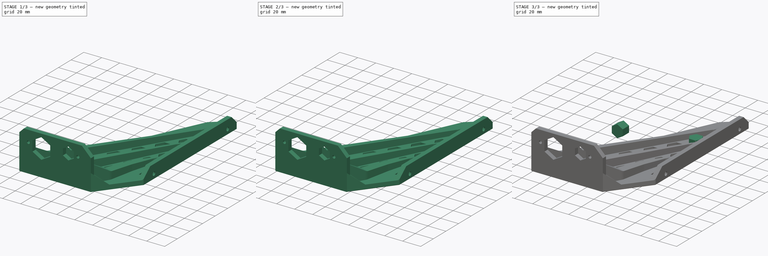
[diagram: build sequence overview — one tinted view per stage of 3, left to right]
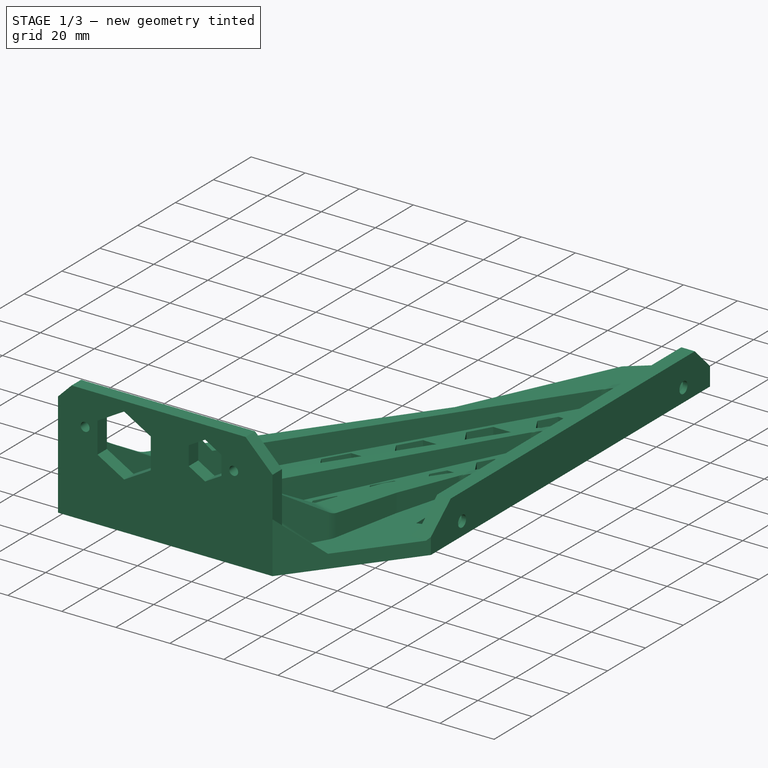
[diagram: stage 1 of 3 — iso view after this stage's code; geometry added in this stage tinted green]
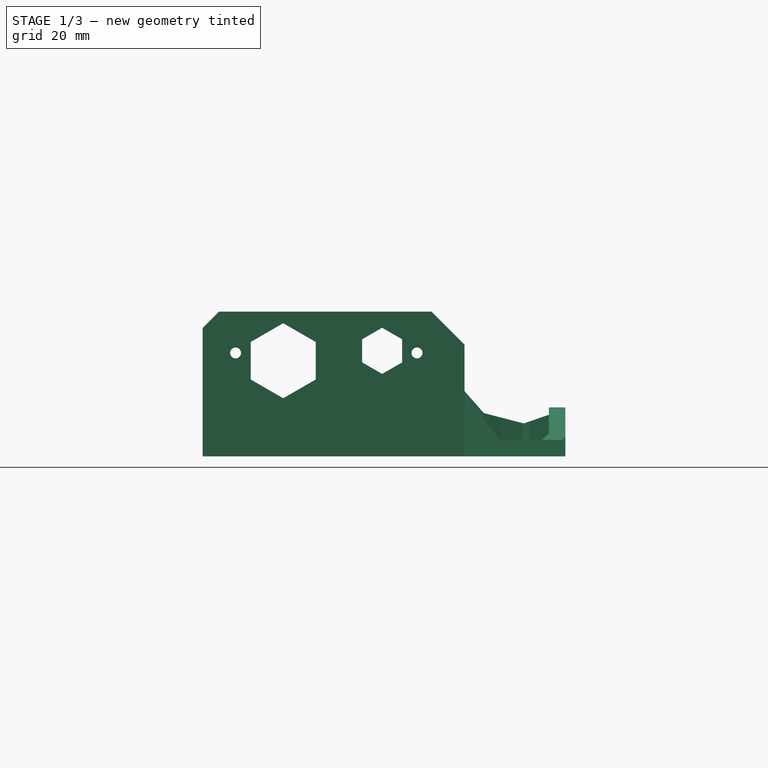
[diagram: stage 1 of 3 — front view after this stage's code; geometry added in this stage tinted green]
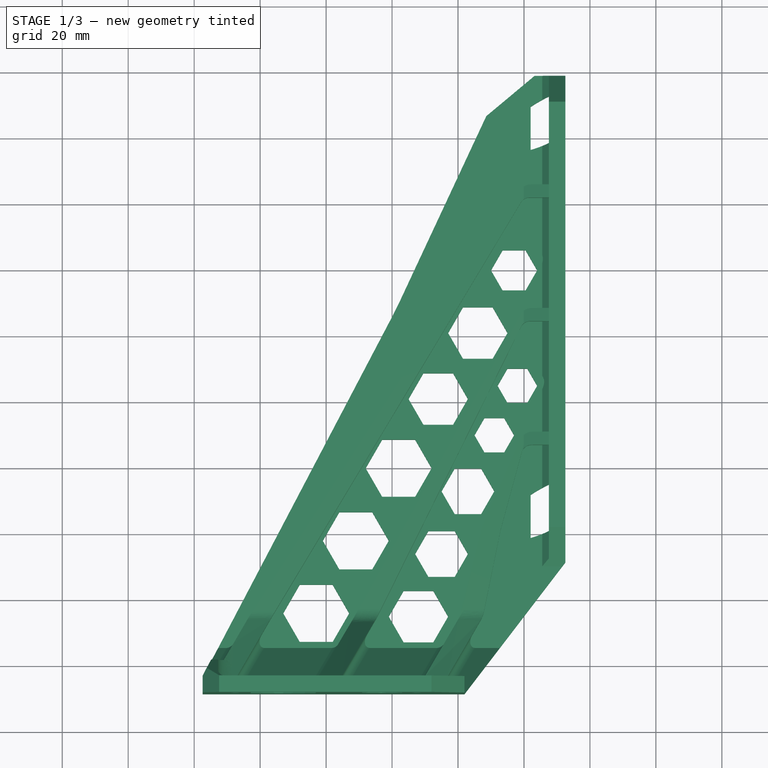
[diagram: stage 1 of 3 — top view after this stage's code; geometry added in this stage tinted green]
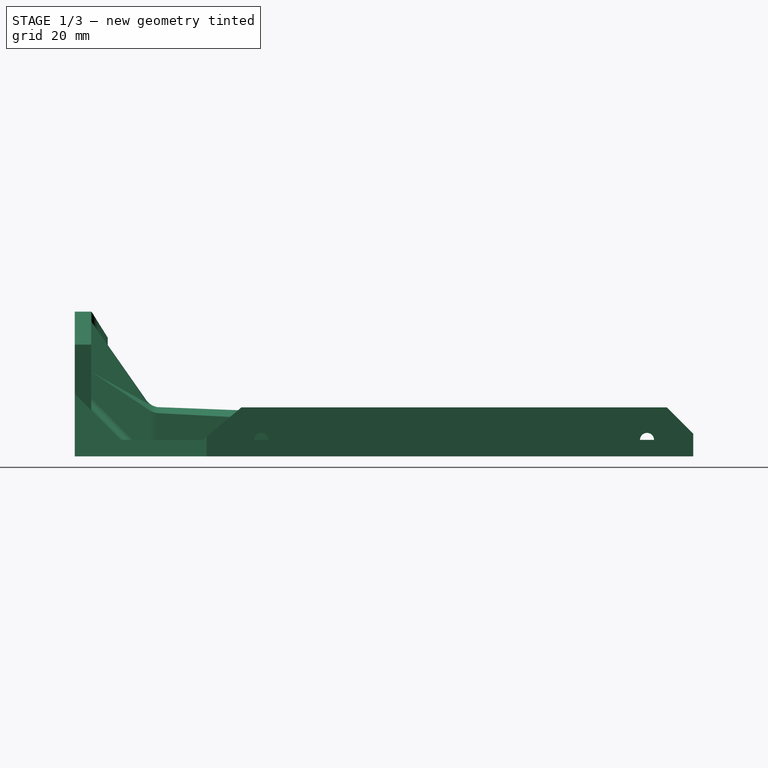
[diagram: stage 1 of 3 — right view after this stage's code; geometry added in this stage tinted green]
FCSTD DOCUMENT  (FreeCAD 0.18R14555 (Git shallow))
Label: prusa-psu-bracket
License: All rights reserved
LicenseURL: http://en.wikipedia.org/wiki/All_rights_reserved
objects: Part::Feature×14, Part::Chamfer×3, Sketcher::SketchObject×2, PartDesign::Pad×2, PartDesign::Body×2, Part::MultiFuse×1, Part::Cut×1
note: 27 computed .brp shape members not serialized (recipe doc carries the construction recipe); baked Part::Feature solids carry a one-line shape summary decoded from their .brp

FEATURE [PartDesign::Body] Body013
  Group = -> [Sketch001,Pad001]
  Origin = -> Origin001
  Tip = -> Pad001
FEATURE [Part::Feature] Body013002  label="Body015"
  Placement = pos=(0,-60,0) rot=(0,0,1;0rad)
  shape: bbox 12.12 x 10 x 14 mm, 8 faces (baked)
FEATURE [Part::MultiFuse] Fusion
  Shapes = -> [Body013002,Body013001,Body012,Body009,Body008,Body011,Body010,Body002,Body001,Body004,Body003,Body005,Body007]
FEATURE [Part::Cut] Cut
  Base = -> Part__Feature
  Tool = -> Fusion
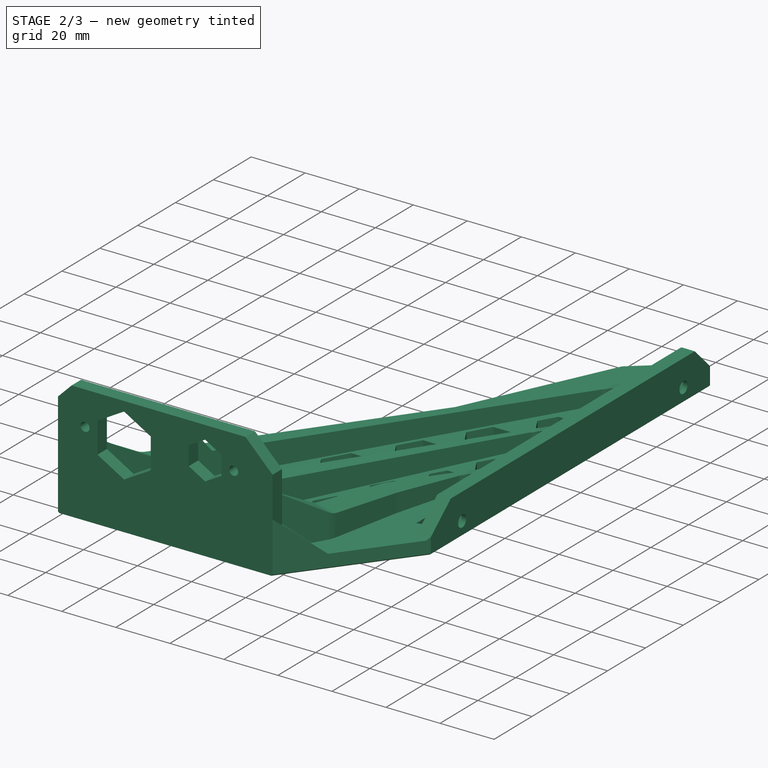
[diagram: stage 2 of 3 — iso view after this stage's code; geometry added in this stage tinted green]
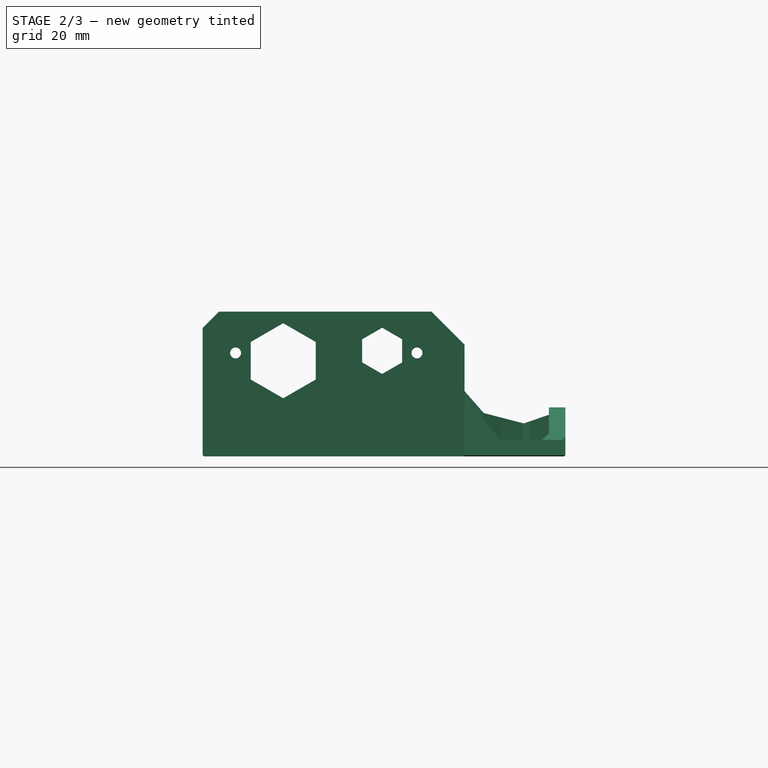
[diagram: stage 2 of 3 — front view after this stage's code; geometry added in this stage tinted green]
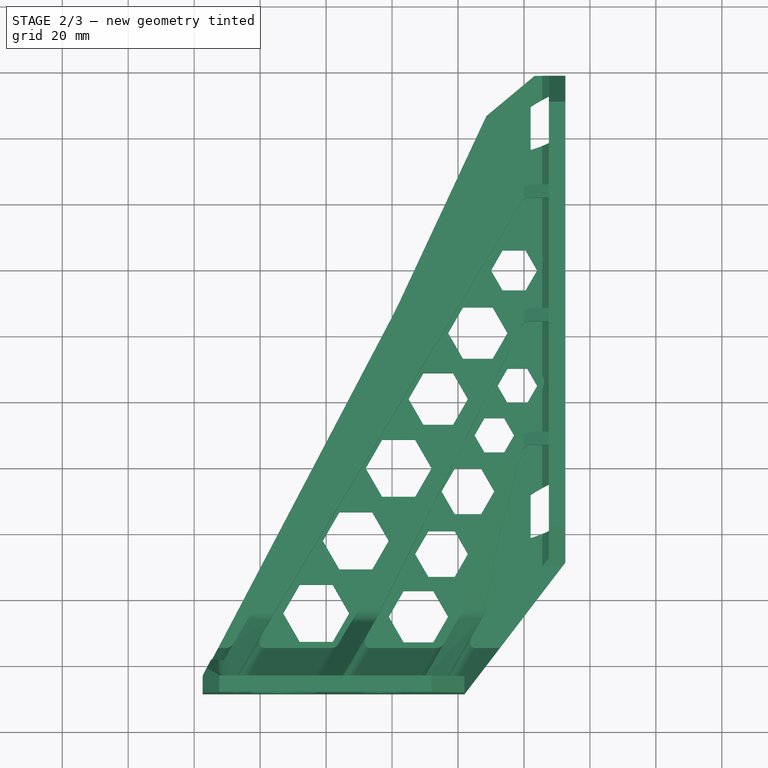
[diagram: stage 2 of 3 — top view after this stage's code; geometry added in this stage tinted green]
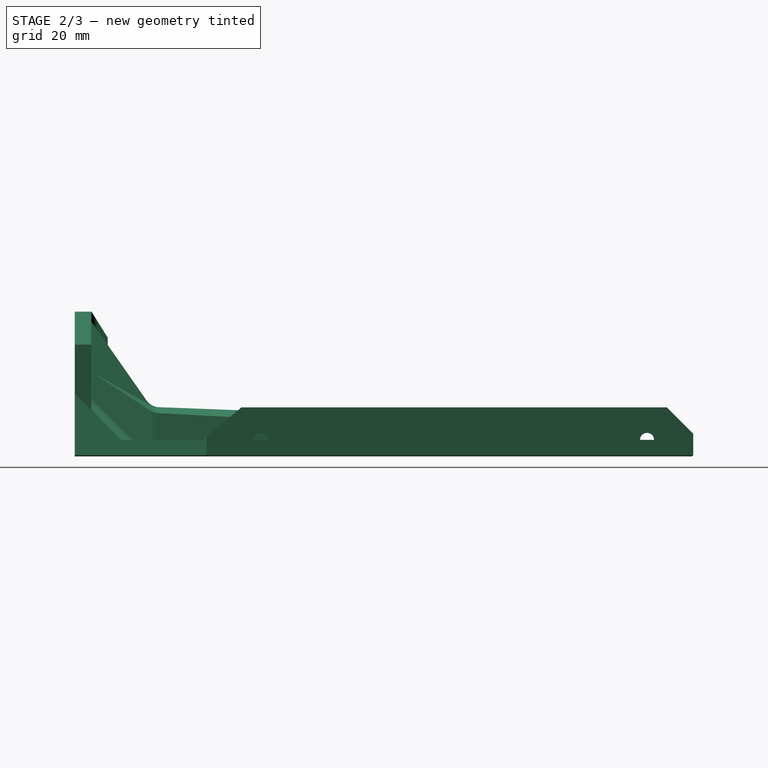
[diagram: stage 2 of 3 — right view after this stage's code; geometry added in this stage tinted green]
FEATURE [Part::Chamfer] Chamfer
  Base = -> Cut
  Edges = 66 edges r=0.4: [Edge190,Edge191,Edge192,Edge193,Edge194,Edge195,Edge196,Edge197,Edge198,Edge199,Edge200,Edge201,Edge202,Edge203,Edge204,Edge205,Edge206,Edge207,Edge208,Edge209,Edge210,Edge211,Edge212,Edge213,Edge214,Edge215,Edge216,Edge217,Edge218,Edge219,Edge220,Edge221,Edge222,Edge223,Edge224,Edge225,Edge226,+29 more]
FEATURE [Part::Chamfer] Chamfer001
  Base = -> Chamfer
  Edges = 8 edges r=0.4: [Edge21,Edge22,Edge23,Edge24,Edge25,Edge26,Edge27,Edge28]
FEATURE [Part::Chamfer] Chamfer002
  Base = -> Chamfer001
  Edges = 9 edges r=0.4: [Edge15,Edge17,Edge18,Edge19,Edge20,Edge21,Edge22,Edge23,Edge24]
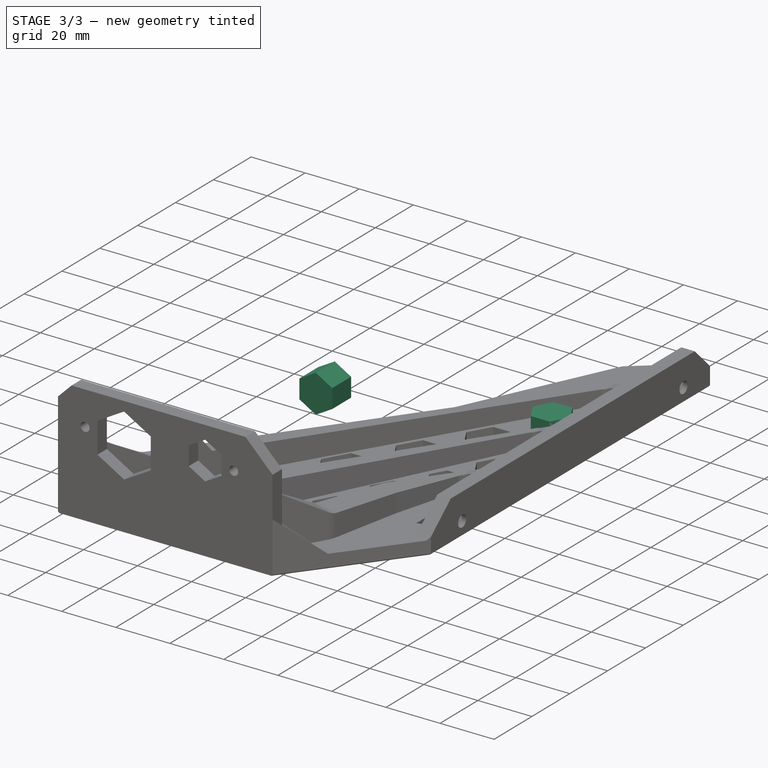
[diagram: stage 3 of 3 — iso view after this stage's code; geometry added in this stage tinted green]
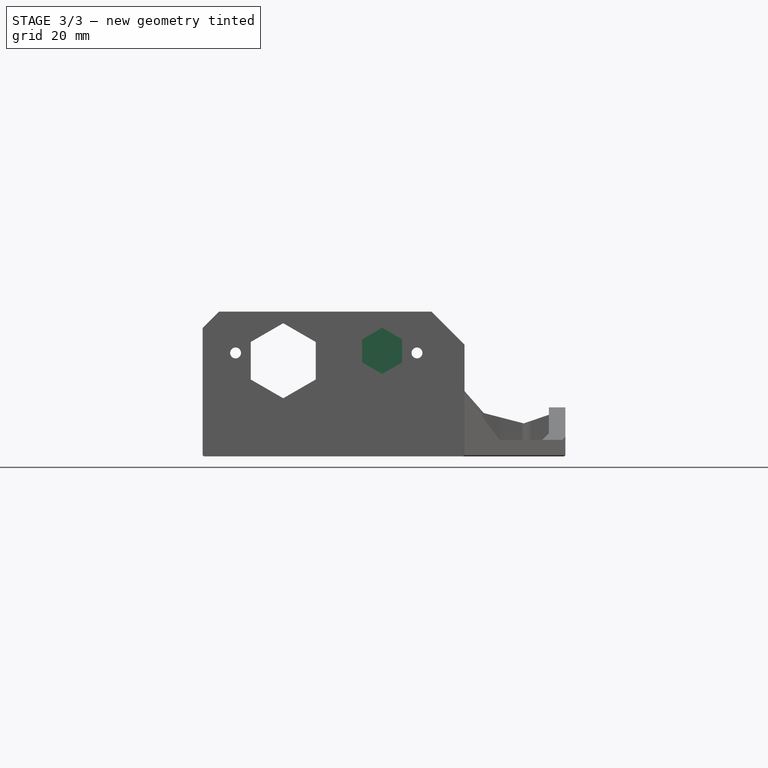
[diagram: stage 3 of 3 — front view after this stage's code; geometry added in this stage tinted green]
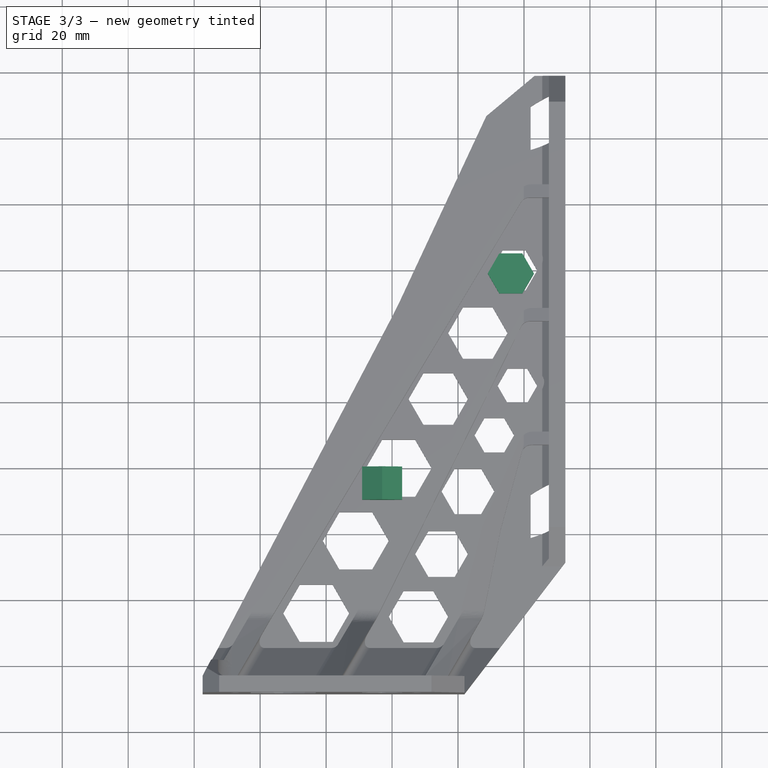
[diagram: stage 3 of 3 — top view after this stage's code; geometry added in this stage tinted green]
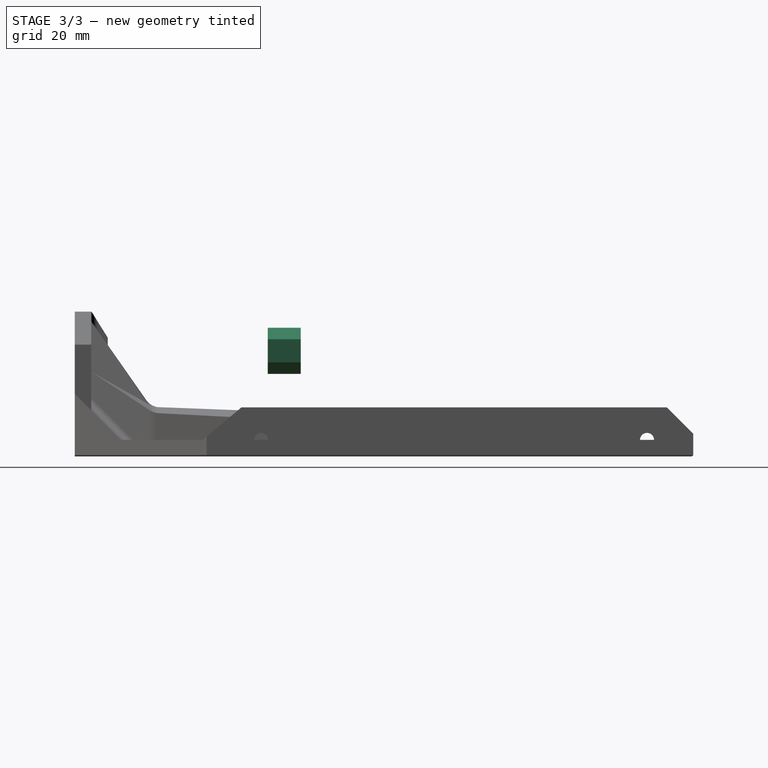
[diagram: stage 3 of 3 — right view after this stage's code; geometry added in this stage tinted green]
FEATURE [Part::Feature] Part__Feature  label="psu-bracket-plaint"
  Placement = pos=(0,0,20) rot=(0,0,1;0rad)
  shape: bbox 204.6 x 214.2 x 46.92 mm, 117 faces (baked)
FEATURE [Sketcher::SketchObject] Sketch
  MapMode = 5
  Support = -> [XY_Plane]
  sketch-geometry (7):
    g0: LineSegment StartX=43 StartY=59 StartZ=0 EndX=39.5 EndY=65.0622 EndZ=0
    g1: LineSegment StartX=39.5 StartY=65.0622 StartZ=0 EndX=32.5 EndY=65.0622 EndZ=0
    g2: LineSegment StartX=32.5 StartY=65.0622 StartZ=0 EndX=29 EndY=59 EndZ=0
    g3: LineSegment StartX=29 StartY=59 StartZ=0 EndX=32.5 EndY=52.9378 EndZ=0
    g4: LineSegment StartX=32.5 StartY=52.9378 StartZ=0 EndX=39.5 EndY=52.9378 EndZ=0
    g5: LineSegment StartX=39.5 StartY=52.9378 StartZ=0 EndX=43 EndY=59 EndZ=0
    g6: Circle [constr] CenterX=36 CenterY=59 CenterZ=0 NormalX=0 NormalY=0 NormalZ=1 AngleXU=0 Radius=7
  constraints (13):
    c: Coincident(g0,g1)
    c: Coincident(g1,g2)
    c: Coincident(g2,g3)
    c: Coincident(g3,g4)
    c: Coincident(g4,g5)
    c: Coincident(g5,g0)
    c: Equal(g0, g1-g5) x5
    c: PointOnObject(g0,g6)
    c: PointOnObject(g1,g6)
    c: PointOnObject(g2,g6)
    c: PointOnObject(g3,g6)
    c: PointOnObject(g4,g6)
    c: PointOnObject(g5,g6)
FEATURE [Part::Feature] Body001
  Placement = pos=(2,0,0) rot=(0,0,1;0rad)
  shape: bbox 20 x 17.32 x 10 mm, 8 faces (baked)
FEATURE [Part::Feature] Body002
  Placement = pos=(-11,-22,0) rot=(0,0,1;0rad)
  shape: bbox 20 x 17.32 x 10 mm, 8 faces (baked)
FEATURE [Part::Feature] Body003
  Placement = pos=(-23,-44,0) rot=(0,0,1;0rad)
  shape: bbox 20 x 17.32 x 10 mm, 8 faces (baked)
FEATURE [Part::Feature] Body004
  Placement = pos=(14,21,0) rot=(0,0,1;0rad)
  shape: bbox 18 x 15.59 x 10 mm, 8 faces (baked)
FEATURE [Part::Feature] Body005
  Placement = pos=(26,41,0) rot=(0,0,1;0rad)
  shape: bbox 18 x 15.59 x 10 mm, 8 faces (baked)
FEATURE [Part::Feature] Body007
  Placement = pos=(-2,-5,0) rot=(0,0,1;0rad)
  shape: bbox 18 x 15.59 x 10 mm, 8 faces (baked)
FEATURE [Part::Feature] Body008
  Placement = pos=(1,4,0) rot=(0,0,1;0rad)
  shape: bbox 16 x 13.86 x 10 mm, 8 faces (baked)
FEATURE [Part::Feature] Body009
  Placement = pos=(9,23,0) rot=(0,0,1;0rad)
  shape: bbox 16 x 13.86 x 10 mm, 8 faces (baked)
FEATURE [Part::Feature] Body010
  Placement = pos=(2,4,0) rot=(0,0,1;0rad)
  shape: bbox 12 x 10.39 x 10 mm, 8 faces (baked)
FEATURE [Part::Feature] Body011
  Placement = pos=(9,19,0) rot=(0,0,1;0rad)
  shape: bbox 12 x 10.39 x 10 mm, 8 faces (baked)
FEATURE [PartDesign::Pad] Pad
  Length = 10
  Length2 = 100
  Profile = -> Sketch
  Type = 0
FEATURE [PartDesign::Body] Body
  Group = -> [Sketch,Pad]
  Origin = -> Origin
  Tip = -> Pad
FEATURE [Part::Feature] Body012
  Placement = pos=(1,1,0) rot=(0,0,1;0rad)
  shape: bbox 14 x 12.12 x 10 mm, 8 faces (baked)
FEATURE [Sketcher::SketchObject] Sketch001
  MapMode = 5
  Placement = pos=(0,0,0) rot=(1,0,0;1.5708rad)
  Support = -> [XZ_Plane001]
  sketch-geometry (7):
    g0: LineSegment StartX=-3 StartY=25 StartZ=0 EndX=3.06218 EndY=28.5 EndZ=0
    g1: LineSegment StartX=3.06218 StartY=28.5 StartZ=0 EndX=3.06218 EndY=35.5 EndZ=0
    g2: LineSegment StartX=3.06218 StartY=35.5 StartZ=0 EndX=-3 EndY=39 EndZ=0
    g3: LineSegment StartX=-3 StartY=39 StartZ=0 EndX=-9.06218 EndY=35.5 EndZ=0
    g4: LineSegment StartX=-9.06218 StartY=35.5 StartZ=0 EndX=-9.06218 EndY=28.5 EndZ=0
    g5: LineSegment StartX=-9.06218 StartY=28.5 StartZ=0 EndX=-3 EndY=25 EndZ=0
    g6: Circle [constr] CenterX=-3 CenterY=32 CenterZ=0 NormalX=0 NormalY=0 NormalZ=1 AngleXU=0 Radius=7
  constraints (13):
    c: Coincident(g0,g1)
    c: Coincident(g1,g2)
    c: Coincident(g2,g3)
    c: Coincident(g3,g4)
    c: Coincident(g4,g5)
    c: Coincident(g5,g0)
    c: Equal(g0, g1-g5) x5
    c: PointOnObject(g0,g6)
    c: PointOnObject(g1,g6)
    c: PointOnObject(g2,g6)
    c: PointOnObject(g3,g6)
    c: PointOnObject(g4,g6)
    c: PointOnObject(g5,g6)
FEATURE [Part::Feature] Body013001  label="Body014"
  Placement = pos=(1,-60,0) rot=(0,0,1;0rad)
  shape: bbox 19.71 x 10 x 22.75 mm, 8 faces (baked)
FEATURE [PartDesign::Pad] Pad001
  Length = 10
  Length2 = 100
  Placement = pos=(0,0,0) rot=(1,0,0;1.5708rad)
  Profile = -> Sketch001
  Type = 0
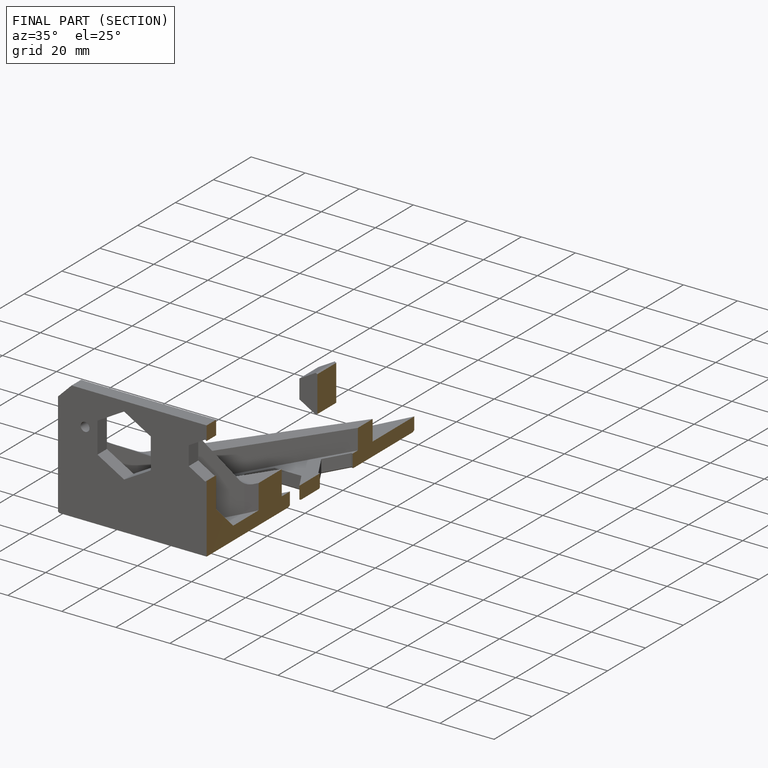
[diagram: finished part — half-section view (interior)]
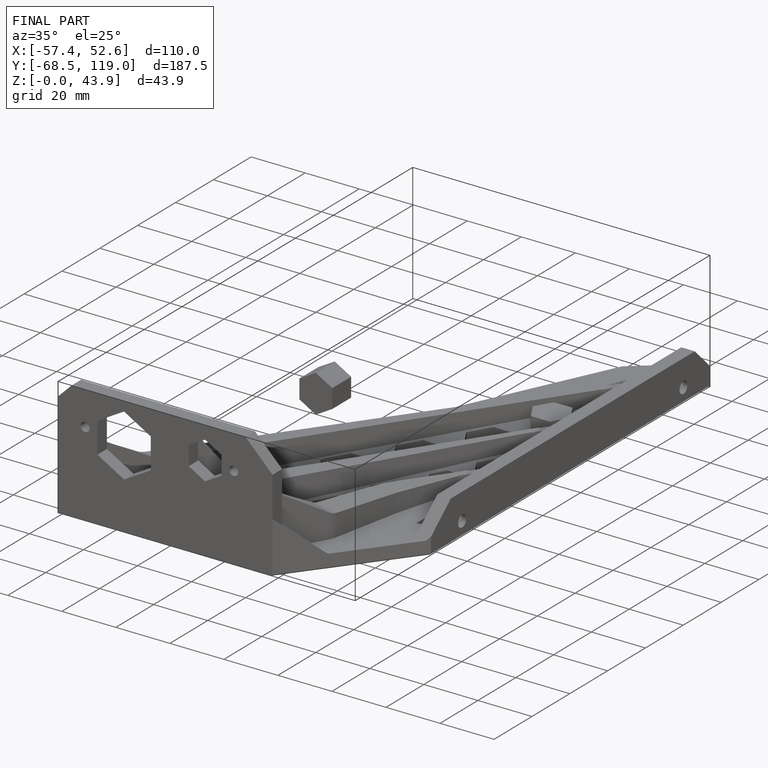
[diagram: finished part — iso view with bounding-box wireframe]
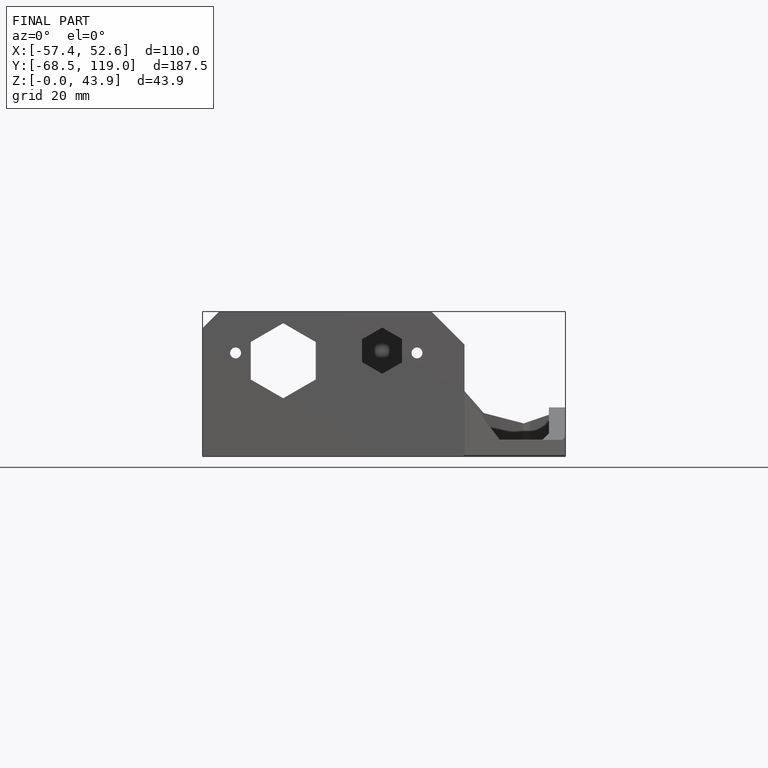
[diagram: finished part — front view with bounding-box wireframe]
